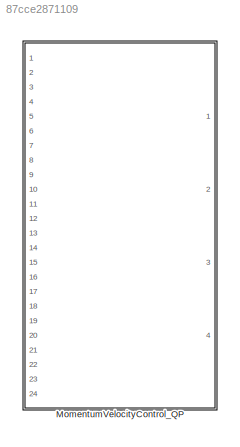
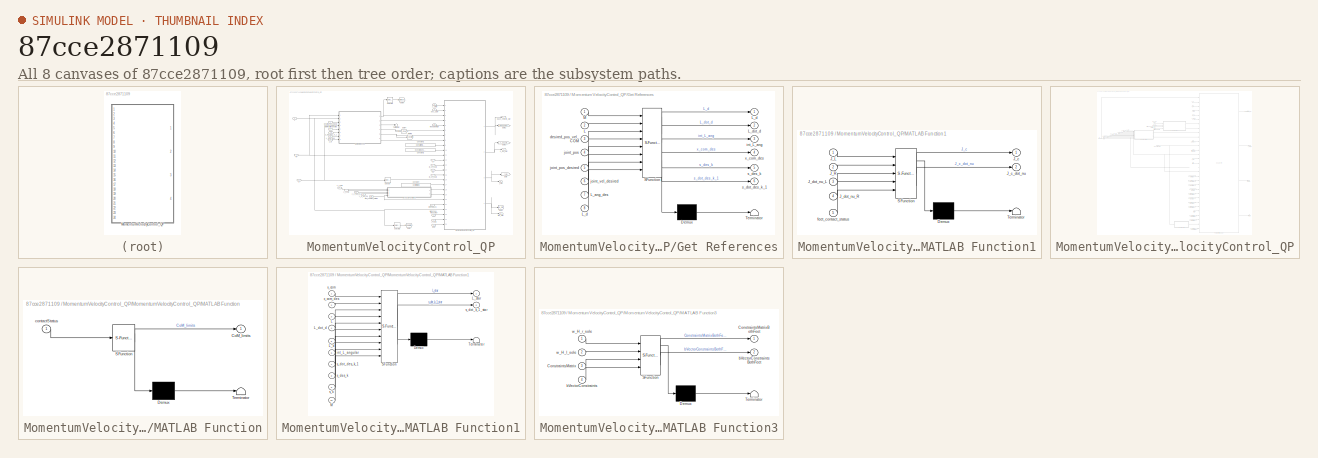
[diagram: thumbnail index - all 8 canvases of the model, root first then tree order]
MODEL slx_87cce2871109
KIND library
CONFIG AbsTol = auto
CONFIG EnableMultiTasking = off
CONFIG FixedStep = auto
CONFIG MaxStep = auto
CONFIG MinStep = auto
CONFIG RelTol = 1e-3
CONFIG SampleTimeConstraint = Unconstrained
CONFIG Solver = VariableStepAuto
CONFIG SolverName = VariableStepAuto
CONFIG StartTime = 0.0
CONFIG StopTime = 10.0
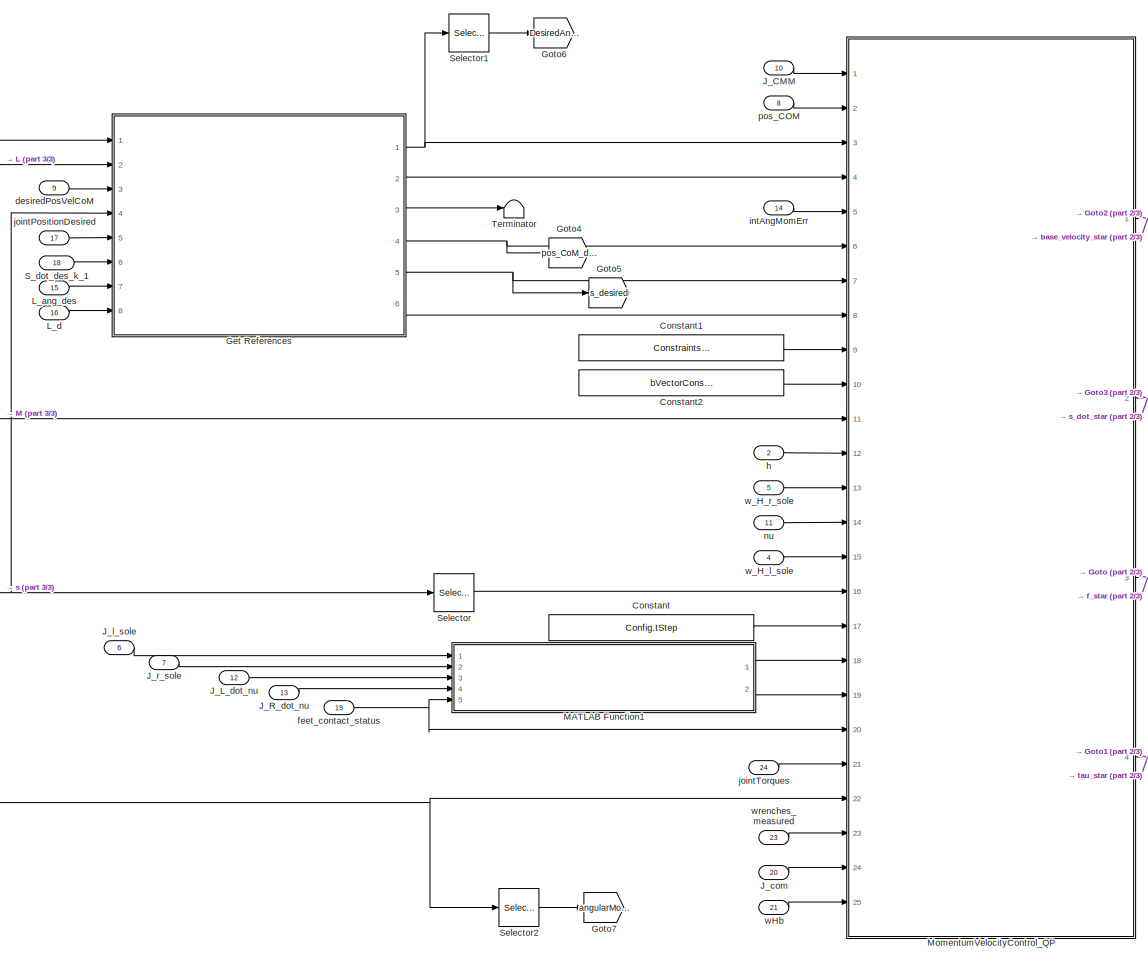
[diagram: MomentumVelocityControl_QP - part 1/3, most of the canvas]
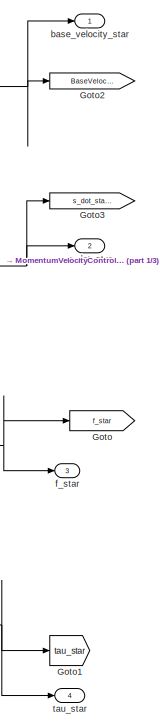
[diagram: MomentumVelocityControl_QP - part 2/3, right side, full height]
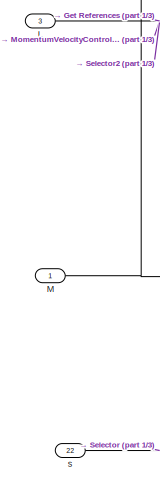
[diagram: MomentumVelocityControl_QP - part 3/3, middle left region]
BLOCK [SubSystem] MomentumVelocityControl_QP
  Ports = [24, 4]
  RequestExecContextInheritance = off
BLOCK [Constant] MomentumVelocityControl_QP/Constant
  Value = Config.tStep
BLOCK [Constant] MomentumVelocityControl_QP/Constant1
  Value = ConstraintsMatrix
BLOCK [Constant] MomentumVelocityControl_QP/Constant2
  Value = bVectorConstraints
BLOCK [SubSystem] MomentumVelocityControl_QP/Get References
  ErrorFcn = Stateflow.Translate.translate
  PermitHierarchicalResolution = ExplicitOnly
  Ports = [8, 6]
  RequestExecContextInheritance = off
  SFBlockType = MATLAB Function
  TreatAsAtomicUnit = on
BLOCK [Demux] MomentumVelocityControl_QP/Get References/ Demux 
  Outputs = 1
  Ports = [1, 1]
BLOCK [S-Function] MomentumVelocityControl_QP/Get References/ SFunction 
  EnableBusSupport = off
  FunctionName = sf_sfun
  PortCounts = [8 7]
  Ports = [8, 7]
  SFcnIsStateOwnerBlock = off
  SFunctionDeploymentMode = off
  Tag = Stateflow S-Function 2
BLOCK [Terminator] MomentumVelocityControl_QP/Get References/ Terminator 
BLOCK [Inport] MomentumVelocityControl_QP/Get References/L
  IconDisplay = Port number
  Port = 2
BLOCK [Inport] MomentumVelocityControl_QP/Get References/L_ang_des
  IconDisplay = Port number
  Port = 7
BLOCK [Outport] MomentumVelocityControl_QP/Get References/L_d
  IconDisplay = Port number
BLOCK [Inport] MomentumVelocityControl_QP/Get References/L_d 
  IconDisplay = Port number
  Port = 8
BLOCK [Outport] MomentumVelocityControl_QP/Get References/L_dot_d
  IconDisplay = Port number
  Port = 2
BLOCK [Inport] MomentumVelocityControl_QP/Get References/M
  IconDisplay = Port number
BLOCK [Inport] MomentumVelocityControl_QP/Get References/desired_pos_vel_COM
  IconDisplay = Port number
  Port = 3
BLOCK [Outport] MomentumVelocityControl_QP/Get References/int_L_ang
  IconDisplay = Port number
  Port = 3
BLOCK [Inport] MomentumVelocityControl_QP/Get References/joint_pos
  IconDisplay = Port number
  Port = 4
BLOCK [Inport] MomentumVelocityControl_QP/Get References/joint_pos_desired
  IconDisplay = Port number
  Port = 5
BLOCK [Inport] MomentumVelocityControl_QP/Get References/joint_vel_desired
  IconDisplay = Port number
  Port = 6
BLOCK [Outport] MomentumVelocityControl_QP/Get References/s_des_k
  IconDisplay = Port number
  Port = 5
BLOCK [Outport] MomentumVelocityControl_QP/Get References/s_dot_des_k_1
  IconDisplay = Port number
  Port = 6
BLOCK [Outport] MomentumVelocityControl_QP/Get References/x_com_des
  IconDisplay = Port number
  Port = 4
BLOCK [Goto] MomentumVelocityControl_QP/Goto
  GotoTag = f_star
  TagVisibility = global
BLOCK [Goto] MomentumVelocityControl_QP/Goto1
  GotoTag = tau_star
  TagVisibility = global
BLOCK [Goto] MomentumVelocityControl_QP/Goto2
  GotoTag = BaseVelocityStar
  TagVisibility = global
BLOCK [Goto] MomentumVelocityControl_QP/Goto3
  GotoTag = s_dot_star_k_1
  TagVisibility = global
BLOCK [Goto] MomentumVelocityControl_QP/Goto4
  GotoTag = pos_CoM_des
  TagVisibility = global
BLOCK [Goto] MomentumVelocityControl_QP/Goto5
  GotoTag = s_desired
  TagVisibility = global
BLOCK [Goto] MomentumVelocityControl_QP/Goto6
  GotoTag = DesiredAngularMomentum
  TagVisibility = global
BLOCK [Goto] MomentumVelocityControl_QP/Goto7
  GotoTag = angularMomentum
  TagVisibility = global
BLOCK [Inport] MomentumVelocityControl_QP/J_CMM
  IconDisplay = Port number
  Port = 10
BLOCK [Inport] MomentumVelocityControl_QP/J_L_dot_nu
  IconDisplay = Port number
  Port = 12
BLOCK [Inport] MomentumVelocityControl_QP/J_R_dot_nu
  IconDisplay = Port number
  Port = 13
BLOCK [Inport] MomentumVelocityControl_QP/J_com
  IconDisplay = Port number
  Port = 20
BLOCK [Inport] MomentumVelocityControl_QP/J_l_sole
  IconDisplay = Port number
  Port = 6
BLOCK [Inport] MomentumVelocityControl_QP/J_r_sole
  IconDisplay = Port number
  Port = 7
BLOCK [Inport] MomentumVelocityControl_QP/L
  IconDisplay = Port number
  Port = 3
BLOCK [Inport] MomentumVelocityControl_QP/L_ang_des
  IconDisplay = Port number
  Port = 15
BLOCK [Inport] MomentumVelocityControl_QP/L_d
  IconDisplay = Port number
  Port = 16
BLOCK [Inport] MomentumVelocityControl_QP/M
  IconDisplay = Port number
BLOCK [SubSystem] MomentumVelocityControl_QP/MATLAB Function1
  ErrorFcn = Stateflow.Translate.translate
  PermitHierarchicalResolution = ExplicitOnly
  Ports = [5, 2]
  RequestExecContextInheritance = off
  SFBlockType = MATLAB Function
  TreatAsAtomicUnit = on
BLOCK [Demux] MomentumVelocityControl_QP/MATLAB Function1/ Demux 
  Outputs = 1
  Ports = [1, 1]
BLOCK [S-Function] MomentumVelocityControl_QP/MATLAB Function1/ SFunction 
  EnableBusSupport = off
  FunctionName = sf_sfun
  PortCounts = [5 3]
  Ports = [5, 3]
  SFcnIsStateOwnerBlock = off
  SFunctionDeploymentMode = off
  Tag = Stateflow S-Function 10
BLOCK [Terminator] MomentumVelocityControl_QP/MATLAB Function1/ Terminator 
BLOCK [Inport] MomentumVelocityControl_QP/MATLAB Function1/J_L
  IconDisplay = Port number
BLOCK [Inport] MomentumVelocityControl_QP/MATLAB Function1/J_R
  IconDisplay = Port number
  Port = 2
BLOCK [Outport] MomentumVelocityControl_QP/MATLAB Function1/J_c
  IconDisplay = Port number
BLOCK [Outport] MomentumVelocityControl_QP/MATLAB Function1/J_c_dot_nu
  IconDisplay = Port number
  Port = 2
BLOCK [Inport] MomentumVelocityControl_QP/MATLAB Function1/J_dot_nu_L
  IconDisplay = Port number
  Port = 3
BLOCK [Inport] MomentumVelocityControl_QP/MATLAB Function1/J_dot_nu_R
  IconDisplay = Port number
  Port = 4
BLOCK [Inport] MomentumVelocityControl_QP/MATLAB Function1/feet_contact_status
  IconDisplay = Port number
  Port = 5
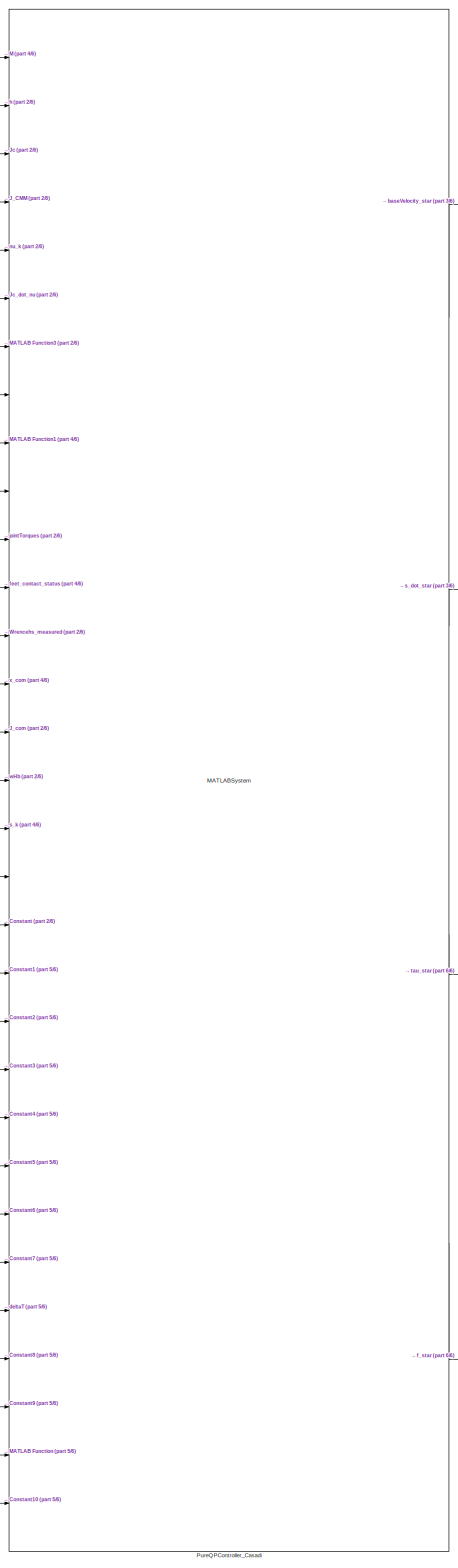
[diagram: MomentumVelocityControl_QP/MomentumVelocityControl_QP - part 1/6, right side, full height]
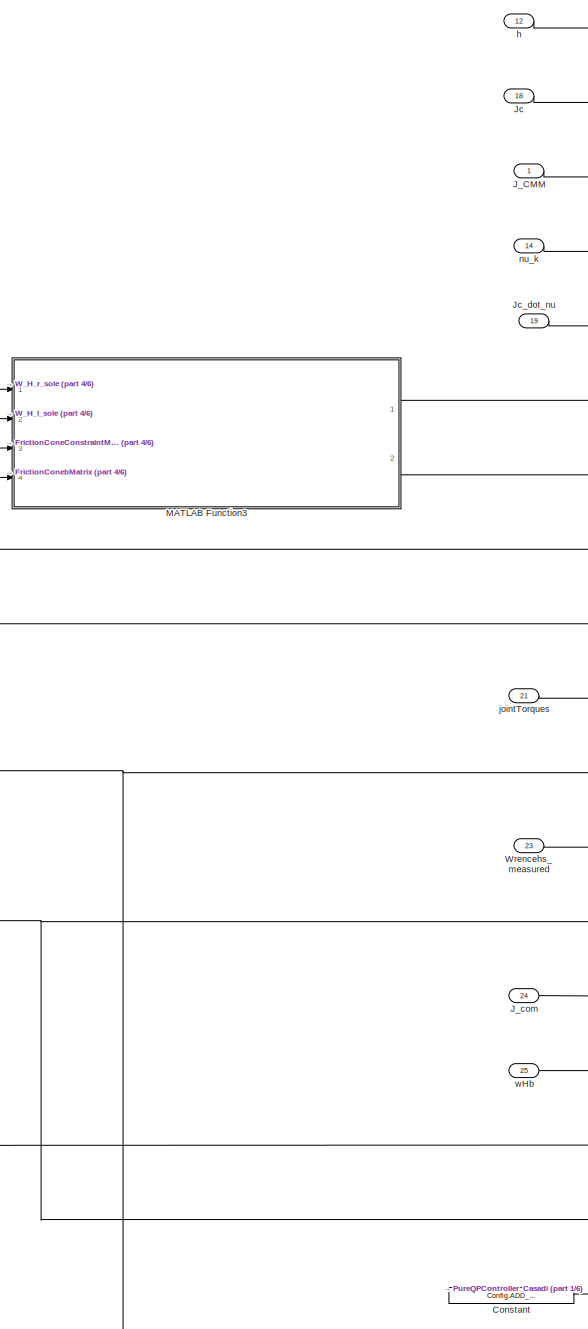
[diagram: MomentumVelocityControl_QP/MomentumVelocityControl_QP - part 2/6, central region]
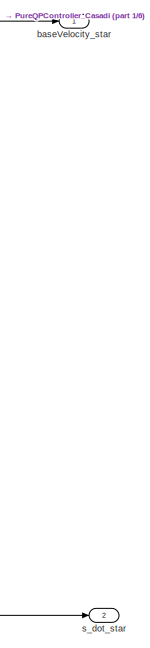
[diagram: MomentumVelocityControl_QP/MomentumVelocityControl_QP - part 3/6, top right region]
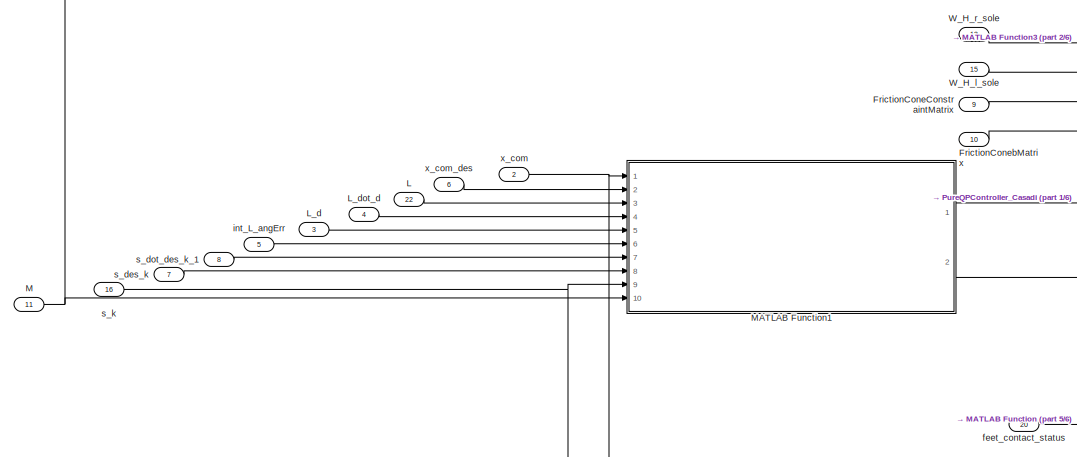
[diagram: MomentumVelocityControl_QP/MomentumVelocityControl_QP - part 4/6, top left region]
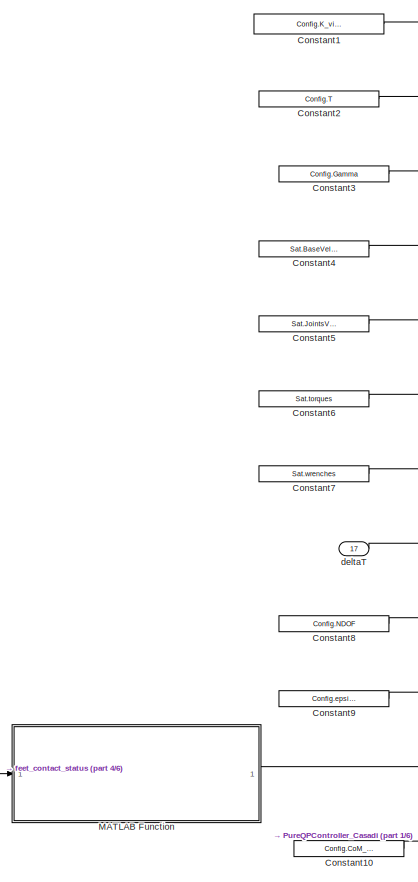
[diagram: MomentumVelocityControl_QP/MomentumVelocityControl_QP - part 5/6, bottom center region]
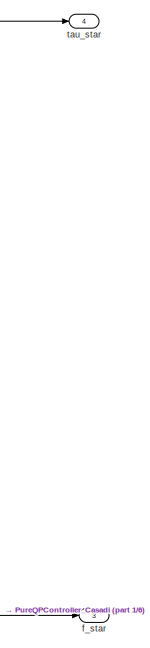
[diagram: MomentumVelocityControl_QP/MomentumVelocityControl_QP - part 6/6, bottom right region]
BLOCK [SubSystem] MomentumVelocityControl_QP/MomentumVelocityControl_QP
  Ports = [25, 4]
  RequestExecContextInheritance = off
BLOCK [Constant] MomentumVelocityControl_QP/MomentumVelocityControl_QP/Constant
  Value = Config.ADD_FRICTION
BLOCK [Constant] MomentumVelocityControl_QP/MomentumVelocityControl_QP/Constant1
  Value = Config.K_viscous_friction
BLOCK [Constant] MomentumVelocityControl_QP/MomentumVelocityControl_QP/Constant10
  Value = Config.CoM_vel_limits
  VectorParams1D = off
BLOCK [Constant] MomentumVelocityControl_QP/MomentumVelocityControl_QP/Constant2
  Value = Config.T
BLOCK [Constant] MomentumVelocityControl_QP/MomentumVelocityControl_QP/Constant3
  Value = Config.Gamma
BLOCK [Constant] MomentumVelocityControl_QP/MomentumVelocityControl_QP/Constant4
  Value = Sat.BaseVelocity
  VectorParams1D = off
BLOCK [Constant] MomentumVelocityControl_QP/MomentumVelocityControl_QP/Constant5
  Value = Sat.JointsVelocity
  VectorParams1D = off
BLOCK [Constant] MomentumVelocityControl_QP/MomentumVelocityControl_QP/Constant6
  Value = Sat.torques
  VectorParams1D = off
BLOCK [Constant] MomentumVelocityControl_QP/MomentumVelocityControl_QP/Constant7
  Value = Sat.wrenches
  VectorParams1D = off
BLOCK [Constant] MomentumVelocityControl_QP/MomentumVelocityControl_QP/Constant8
  Value = Config.NDOF
  VectorParams1D = off
BLOCK [Constant] MomentumVelocityControl_QP/MomentumVelocityControl_QP/Constant9
  Value = Config.epsilon_CoM
  VectorParams1D = off
BLOCK [Inport] MomentumVelocityControl_QP/MomentumVelocityControl_QP/FrictionConeConstraintMatrix
  IconDisplay = Port number
  Port = 9
BLOCK [Inport] MomentumVelocityControl_QP/MomentumVelocityControl_QP/FrictionConebMatrix
  IconDisplay = Port number
  Port = 10
BLOCK [Inport] MomentumVelocityControl_QP/MomentumVelocityControl_QP/J_CMM
  IconDisplay = Port number
BLOCK [Inport] MomentumVelocityControl_QP/MomentumVelocityControl_QP/J_com
  IconDisplay = Port number
  Port = 24
BLOCK [Inport] MomentumVelocityControl_QP/MomentumVelocityControl_QP/Jc
  IconDisplay = Port number
  Port = 18
BLOCK [Inport] MomentumVelocityControl_QP/MomentumVelocityControl_QP/Jc_dot_nu
  IconDisplay = Port number
  Port = 19
BLOCK [Inport] MomentumVelocityControl_QP/MomentumVelocityControl_QP/L
  IconDisplay = Port number
  Port = 22
BLOCK [Inport] MomentumVelocityControl_QP/MomentumVelocityControl_QP/L_d
  IconDisplay = Port number
  Port = 3
BLOCK [Inport] MomentumVelocityControl_QP/MomentumVelocityControl_QP/L_dot_d
  IconDisplay = Port number
  Port = 4
BLOCK [Inport] MomentumVelocityControl_QP/MomentumVelocityControl_QP/M
  IconDisplay = Port number
  Port = 11
BLOCK [SubSystem] MomentumVelocityControl_QP/MomentumVelocityControl_QP/MATLAB Function
  ErrorFcn = Stateflow.Translate.translate
  PermitHierarchicalResolution = ExplicitOnly
  Ports = [1, 1]
  RequestExecContextInheritance = off
  SFBlockType = MATLAB Function
  TreatAsAtomicUnit = on
BLOCK [Demux] MomentumVelocityControl_QP/MomentumVelocityControl_QP/MATLAB Function/ Demux 
  Outputs = 1
  Ports = [1, 1]
BLOCK [S-Function] MomentumVelocityControl_QP/MomentumVelocityControl_QP/MATLAB Function/ SFunction 
  EnableBusSupport = off
  FunctionName = sf_sfun
  Parameters = Config
  PortCounts = [1 2]
  Ports = [1, 2]
  SFcnIsStateOwnerBlock = off
  SFunctionDeploymentMode = off
  Tag = Stateflow S-Function 1
BLOCK [Terminator] MomentumVelocityControl_QP/MomentumVelocityControl_QP/MATLAB Function/ Terminator 
BLOCK [Outport] MomentumVelocityControl_QP/MomentumVelocityControl_QP/MATLAB Function/CoM_limits
  IconDisplay = Port number
BLOCK [Inport] MomentumVelocityControl_QP/MomentumVelocityControl_QP/MATLAB Function/contactStatus
  IconDisplay = Port number
BLOCK [SubSystem] MomentumVelocityControl_QP/MomentumVelocityControl_QP/MATLAB Function1
  ErrorFcn = Stateflow.Translate.translate
  PermitHierarchicalResolution = ExplicitOnly
  Ports = [10, 2]
  RequestExecContextInheritance = off
  SFBlockType = MATLAB Function
  TreatAsAtomicUnit = on
BLOCK [Demux] MomentumVelocityControl_QP/MomentumVelocityControl_QP/MATLAB Function1/ Demux 
  Outputs = 1
  Ports = [1, 1]
BLOCK [S-Function] MomentumVelocityControl_QP/MomentumVelocityControl_QP/MATLAB Function1/ SFunction 
  EnableBusSupport = off
  FunctionName = sf_sfun
  Parameters = Gains
  PortCounts = [10 3]
  Ports = [10, 3]
  SFcnIsStateOwnerBlock = off
  SFunctionDeploymentMode = off
  Tag = Stateflow S-Function 19
BLOCK [Terminator] MomentumVelocityControl_QP/MomentumVelocityControl_QP/MATLAB Function1/ Terminator 
BLOCK [Inport] MomentumVelocityControl_QP/MomentumVelocityControl_QP/MATLAB Function1/L
  IconDisplay = Port number
  Port = 3
BLOCK [Inport] MomentumVelocityControl_QP/MomentumVelocityControl_QP/MATLAB Function1/L_d
  IconDisplay = Port number
  Port = 5
BLOCK [Inport] MomentumVelocityControl_QP/MomentumVelocityControl_QP/MATLAB Function1/L_dot_d
  IconDisplay = Port number
  Port = 4
BLOCK [Outport] MomentumVelocityControl_QP/MomentumVelocityControl_QP/MATLAB Function1/L_star
  IconDisplay = Port number
BLOCK [Inport] MomentumVelocityControl_QP/MomentumVelocityControl_QP/MATLAB Function1/M
  IconDisplay = Port number
  Port = 10
BLOCK [Inport] MomentumVelocityControl_QP/MomentumVelocityControl_QP/MATLAB Function1/int_L_angular
  IconDisplay = Port number
  Port = 6
BLOCK [Inport] MomentumVelocityControl_QP/MomentumVelocityControl_QP/MATLAB Function1/s_des_k
  IconDisplay = Port number
  Port = 8
BLOCK [Inport] MomentumVelocityControl_QP/MomentumVelocityControl_QP/MATLAB Function1/s_dot_des_k_1
  IconDisplay = Port number
  Port = 7
BLOCK [Outport] MomentumVelocityControl_QP/MomentumVelocityControl_QP/MATLAB Function1/s_dot_k_1_star
  IconDisplay = Port number
  Port = 2
BLOCK [Inport] MomentumVelocityControl_QP/MomentumVelocityControl_QP/MATLAB Function1/s_k
  IconDisplay = Port number
  Port = 9
BLOCK [Inport] MomentumVelocityControl_QP/MomentumVelocityControl_QP/MATLAB Function1/x_com
  IconDisplay = Port number
BLOCK [Inport] MomentumVelocityControl_QP/MomentumVelocityControl_QP/MATLAB Function1/x_com_des
  IconDisplay = Port number
  Port = 2
BLOCK [SubSystem] MomentumVelocityControl_QP/MomentumVelocityControl_QP/MATLAB Function3
  ErrorFcn = Stateflow.Translate.translate
  PermitHierarchicalResolution = ExplicitOnly
  Ports = [4, 2]
  RequestExecContextInheritance = off
  SFBlockType = MATLAB Function
  TreatAsAtomicUnit = on
BLOCK [Demux] MomentumVelocityControl_QP/MomentumVelocityControl_QP/MATLAB Function3/ Demux 
  Outputs = 1
  Ports = [1, 1]
BLOCK [S-Function] MomentumVelocityControl_QP/MomentumVelocityControl_QP/MATLAB Function3/ SFunction 
  EnableBusSupport = off
  FunctionName = sf_sfun
  PortCounts = [4 3]
  Ports = [4, 3]
  SFcnIsStateOwnerBlock = off
  SFunctionDeploymentMode = off
  Tag = Stateflow S-Function 20
BLOCK [Terminator] MomentumVelocityControl_QP/MomentumVelocityControl_QP/MATLAB Function3/ Terminator 
BLOCK [Inport] MomentumVelocityControl_QP/MomentumVelocityControl_QP/MATLAB Function3/ConstraintsMatrix
  IconDisplay = Port number
  Port = 3
BLOCK [Outport] MomentumVelocityControl_QP/MomentumVelocityControl_QP/MATLAB Function3/ConstraintsMatrixBothFeet
  IconDisplay = Port number
BLOCK [Inport] MomentumVelocityControl_QP/MomentumVelocityControl_QP/MATLAB Function3/bVectorConstraints
  IconDisplay = Port number
  Port = 4
BLOCK [Outport] MomentumVelocityControl_QP/MomentumVelocityControl_QP/MATLAB Function3/bVectorConstraintsBothFeet
  IconDisplay = Port number
  Port = 2
BLOCK [Inport] MomentumVelocityControl_QP/MomentumVelocityControl_QP/MATLAB Function3/w_H_l_sole
  IconDisplay = Port number
  Port = 2
BLOCK [Inport] MomentumVelocityControl_QP/MomentumVelocityControl_QP/MATLAB Function3/w_H_r_sole
  IconDisplay = Port number
BLOCK [MATLABSystem] MomentumVelocityControl_QP/MomentumVelocityControl_QP/PureQPController_Casadi
  MaskDisplay = disp('casadi_block');\nport_label('input',1,'M');\nport_label('input',2,'h');\nport_label('input',3,'Jc');\nport_label('input',4,'Jcmm');\nport_label('input',5,'nu_k');\nport_label('input',6,'Jc_dot_nu');\nport_label('input',7,'C_friction');\nport_label('input',8,'b_friction');\nport_label('input',9,'H_star');\nport_label('input',10,'s_dot_star');\nport_label('input',11,'tau_meas');\nport_label('input',12,'co...<+838ch>
  MaskType = casadi_block
  Ports = [31, 4]
  SimulateUsing = Interpreted execution
  System = casadi_block
BLOCK [Inport] MomentumVelocityControl_QP/MomentumVelocityControl_QP/W_H_l_sole
  IconDisplay = Port number
  Port = 15
BLOCK [Inport] MomentumVelocityControl_QP/MomentumVelocityControl_QP/W_H_r_sole
  IconDisplay = Port number
  Port = 13
BLOCK [Inport] MomentumVelocityControl_QP/MomentumVelocityControl_QP/Wrencehs_measured
  IconDisplay = Port number
  Port = 23
BLOCK [Outport] MomentumVelocityControl_QP/MomentumVelocityControl_QP/baseVelocity_star
  IconDisplay = Port number
BLOCK [Inport] MomentumVelocityControl_QP/MomentumVelocityControl_QP/deltaT 
  IconDisplay = Port number
  Port = 17
BLOCK [Outport] MomentumVelocityControl_QP/MomentumVelocityControl_QP/f_star
  IconDisplay = Port number
  Port = 3
BLOCK [Inport] MomentumVelocityControl_QP/MomentumVelocityControl_QP/feet_contact_status
  IconDisplay = Port number
  Port = 20
BLOCK [Inport] MomentumVelocityControl_QP/MomentumVelocityControl_QP/h
  IconDisplay = Port number
  Port = 12
BLOCK [Inport] MomentumVelocityControl_QP/MomentumVelocityControl_QP/int_L_angErr
  IconDisplay = Port number
  Port = 5
BLOCK [Inport] MomentumVelocityControl_QP/MomentumVelocityControl_QP/jointTorques
  IconDisplay = Port number
  Port = 21
BLOCK [Inport] MomentumVelocityControl_QP/MomentumVelocityControl_QP/nu_k
  IconDisplay = Port number
  Port = 14
BLOCK [Inport] MomentumVelocityControl_QP/MomentumVelocityControl_QP/s_des_k
  IconDisplay = Port number
  Port = 7
BLOCK [Inport] MomentumVelocityControl_QP/MomentumVelocityControl_QP/s_dot_des_k_1
  IconDisplay = Port number
  Port = 8
BLOCK [Outport] MomentumVelocityControl_QP/MomentumVelocityControl_QP/s_dot_star
  IconDisplay = Port number
  Port = 2
BLOCK [Inport] MomentumVelocityControl_QP/MomentumVelocityControl_QP/s_k
  IconDisplay = Port number
  Port = 16
BLOCK [Outport] MomentumVelocityControl_QP/MomentumVelocityControl_QP/tau_star
  IconDisplay = Port number
  Port = 4
BLOCK [Inport] MomentumVelocityControl_QP/MomentumVelocityControl_QP/wHb
  IconDisplay = Port number
  Port = 25
BLOCK [Inport] MomentumVelocityControl_QP/MomentumVelocityControl_QP/x_com
  IconDisplay = Port number
  Port = 2
BLOCK [Inport] MomentumVelocityControl_QP/MomentumVelocityControl_QP/x_com_des
  IconDisplay = Port number
  Port = 6
BLOCK [Inport] MomentumVelocityControl_QP/S_dot_des_k_1
  IconDisplay = Port number
  Port = 18
BLOCK [Selector] MomentumVelocityControl_QP/Selector
  IndexOptions = Index vector (dialog)
  Indices = [1:ROBOT_DOF]
  InputPortWidth = ROBOT_DOF
  OutputSizes = 1
  Ports = [1, 1]
BLOCK [Selector] MomentumVelocityControl_QP/Selector1
  IndexOptions = Index vector (dialog)
  Indices = [4:6]
  InputPortWidth = 6
  OutputSizes = 1
  Ports = [1, 1]
BLOCK [Selector] MomentumVelocityControl_QP/Selector2
  IndexOptions = Index vector (dialog)
  Indices = [4:6]
  InputPortWidth = 6
  OutputSizes = 1
  Ports = [1, 1]
BLOCK [Terminator] MomentumVelocityControl_QP/Terminator
BLOCK [Outport] MomentumVelocityControl_QP/base_velocity_star
  IconDisplay = Port number
BLOCK [Inport] MomentumVelocityControl_QP/desiredPosVelCoM
  IconDisplay = Port number
  Port = 9
BLOCK [Outport] MomentumVelocityControl_QP/f_star
  IconDisplay = Port number
  Port = 3
BLOCK [Inport] MomentumVelocityControl_QP/feet_contact_status
  IconDisplay = Port number
  Port = 19
BLOCK [Inport] MomentumVelocityControl_QP/h
  IconDisplay = Port number
  Port = 2
BLOCK [Inport] MomentumVelocityControl_QP/intAngMomErr
  IconDisplay = Port number
  Port = 14
BLOCK [Inport] MomentumVelocityControl_QP/jointPositionDesired
  IconDisplay = Port number
  Port = 17
BLOCK [Inport] MomentumVelocityControl_QP/jointTorques
  IconDisplay = Port number
  Port = 24
BLOCK [Inport] MomentumVelocityControl_QP/nu
  IconDisplay = Port number
  Port = 11
BLOCK [Inport] MomentumVelocityControl_QP/pos_COM
  IconDisplay = Port number
  Port = 8
BLOCK [Inport] MomentumVelocityControl_QP/s
  IconDisplay = Port number
  Port = 22
BLOCK [Outport] MomentumVelocityControl_QP/s_dot_star
  IconDisplay = Port number
  Port = 2
BLOCK [Outport] MomentumVelocityControl_QP/tau_star
  IconDisplay = Port number
  Port = 4
BLOCK [Inport] MomentumVelocityControl_QP/wHb
  IconDisplay = Port number
  Port = 21
BLOCK [Inport] MomentumVelocityControl_QP/w_H_l_sole
  IconDisplay = Port number
  Port = 4
BLOCK [Inport] MomentumVelocityControl_QP/w_H_r_sole
  IconDisplay = Port number
  Port = 5
BLOCK [Inport] MomentumVelocityControl_QP/wrenches_measured
  IconDisplay = Port number
  Port = 23
LINE MomentumVelocityControl_QP/Constant1:1 -> MomentumVelocityControl_QP/MomentumVelocityControl_QP:9
LINE MomentumVelocityControl_QP/Constant2:1 -> MomentumVelocityControl_QP/MomentumVelocityControl_QP:10
LINE MomentumVelocityControl_QP/Constant:1 -> MomentumVelocityControl_QP/MomentumVelocityControl_QP:17
NET MomentumVelocityControl_QP/Get References:1 -> MomentumVelocityControl_QP/MomentumVelocityControl_QP:3, MomentumVelocityControl_QP/Selector1:1
LINE MomentumVelocityControl_QP/Get References:2 -> MomentumVelocityControl_QP/MomentumVelocityControl_QP:4
LINE MomentumVelocityControl_QP/Get References:3 -> MomentumVelocityControl_QP/Terminator:1
NET MomentumVelocityControl_QP/Get References:4 -> MomentumVelocityControl_QP/Goto4:1, MomentumVelocityControl_QP/MomentumVelocityControl_QP:6
NET MomentumVelocityControl_QP/Get References:5 -> MomentumVelocityControl_QP/Goto5:1, MomentumVelocityControl_QP/MomentumVelocityControl_QP:7
LINE MomentumVelocityControl_QP/Get References:6 -> MomentumVelocityControl_QP/MomentumVelocityControl_QP:8
LINE MomentumVelocityControl_QP/J_CMM:1 -> MomentumVelocityControl_QP/MomentumVelocityControl_QP:1
LINE MomentumVelocityControl_QP/J_L_dot_nu:1 -> MomentumVelocityControl_QP/MATLAB Function1:3
LINE MomentumVelocityControl_QP/J_R_dot_nu:1 -> MomentumVelocityControl_QP/MATLAB Function1:4
LINE MomentumVelocityControl_QP/J_com:1 -> MomentumVelocityControl_QP/MomentumVelocityControl_QP:24
LINE MomentumVelocityControl_QP/J_l_sole:1 -> MomentumVelocityControl_QP/MATLAB Function1:1
LINE MomentumVelocityControl_QP/J_r_sole:1 -> MomentumVelocityControl_QP/MATLAB Function1:2
NET MomentumVelocityControl_QP/L:1 -> MomentumVelocityControl_QP/Get References:2, MomentumVelocityControl_QP/MomentumVelocityControl_QP:22, MomentumVelocityControl_QP/Selector2:1
LINE MomentumVelocityControl_QP/L_ang_des:1 -> MomentumVelocityControl_QP/Get References:7
LINE MomentumVelocityControl_QP/L_d:1 -> MomentumVelocityControl_QP/Get References:8
NET MomentumVelocityControl_QP/M:1 -> MomentumVelocityControl_QP/Get References:1, MomentumVelocityControl_QP/MomentumVelocityControl_QP:11
LINE MomentumVelocityControl_QP/MATLAB Function1:1 -> MomentumVelocityControl_QP/MomentumVelocityControl_QP:18
LINE MomentumVelocityControl_QP/MATLAB Function1:2 -> MomentumVelocityControl_QP/MomentumVelocityControl_QP:19
LINE MomentumVelocityControl_QP/MomentumVelocityControl_QP/Constant10:1 -> MomentumVelocityControl_QP/MomentumVelocityControl_QP/PureQPController_Casadi:31
LINE MomentumVelocityControl_QP/MomentumVelocityControl_QP/Constant1:1 -> MomentumVelocityControl_QP/MomentumVelocityControl_QP/PureQPController_Casadi:20
LINE MomentumVelocityControl_QP/MomentumVelocityControl_QP/Constant2:1 -> MomentumVelocityControl_QP/MomentumVelocityControl_QP/PureQPController_Casadi:21
LINE MomentumVelocityControl_QP/MomentumVelocityControl_QP/Constant3:1 -> MomentumVelocityControl_QP/MomentumVelocityControl_QP/PureQPController_Casadi:22
LINE MomentumVelocityControl_QP/MomentumVelocityControl_QP/Constant4:1 -> MomentumVelocityControl_QP/MomentumVelocityControl_QP/PureQPController_Casadi:23
LINE MomentumVelocityControl_QP/MomentumVelocityControl_QP/Constant5:1 -> MomentumVelocityControl_QP/MomentumVelocityControl_QP/PureQPController_Casadi:24
LINE MomentumVelocityControl_QP/MomentumVelocityControl_QP/Constant6:1 -> MomentumVelocityControl_QP/MomentumVelocityControl_QP/PureQPController_Casadi:25
LINE MomentumVelocityControl_QP/MomentumVelocityControl_QP/Constant7:1 -> MomentumVelocityControl_QP/MomentumVelocityControl_QP/PureQPController_Casadi:26
LINE MomentumVelocityControl_QP/MomentumVelocityControl_QP/Constant8:1 -> MomentumVelocityControl_QP/MomentumVelocityControl_QP/PureQPController_Casadi:28
LINE MomentumVelocityControl_QP/MomentumVelocityControl_QP/Constant9:1 -> MomentumVelocityControl_QP/MomentumVelocityControl_QP/PureQPController_Casadi:29
LINE MomentumVelocityControl_QP/MomentumVelocityControl_QP/Constant:1 -> MomentumVelocityControl_QP/MomentumVelocityControl_QP/PureQPController_Casadi:19
LINE MomentumVelocityControl_QP/MomentumVelocityControl_QP/FrictionConeConstraintMatrix:1 -> MomentumVelocityControl_QP/MomentumVelocityControl_QP/MATLAB Function3:3
LINE MomentumVelocityControl_QP/MomentumVelocityControl_QP/FrictionConebMatrix:1 -> MomentumVelocityControl_QP/MomentumVelocityControl_QP/MATLAB Function3:4
LINE MomentumVelocityControl_QP/MomentumVelocityControl_QP/J_CMM:1 -> MomentumVelocityControl_QP/MomentumVelocityControl_QP/PureQPController_Casadi:4
LINE MomentumVelocityControl_QP/MomentumVelocityControl_QP/J_com:1 -> MomentumVelocityControl_QP/MomentumVelocityControl_QP/PureQPController_Casadi:15
LINE MomentumVelocityControl_QP/MomentumVelocityControl_QP/Jc:1 -> MomentumVelocityControl_QP/MomentumVelocityControl_QP/PureQPController_Casadi:3
LINE MomentumVelocityControl_QP/MomentumVelocityControl_QP/Jc_dot_nu:1 -> MomentumVelocityControl_QP/MomentumVelocityControl_QP/PureQPController_Casadi:6
LINE MomentumVelocityControl_QP/MomentumVelocityControl_QP/L:1 -> MomentumVelocityControl_QP/MomentumVelocityControl_QP/MATLAB Function1:3
LINE MomentumVelocityControl_QP/MomentumVelocityControl_QP/L_d:1 -> MomentumVelocityControl_QP/MomentumVelocityControl_QP/MATLAB Function1:5
LINE MomentumVelocityControl_QP/MomentumVelocityControl_QP/L_dot_d:1 -> MomentumVelocityControl_QP/MomentumVelocityControl_QP/MATLAB Function1:4
NET MomentumVelocityControl_QP/MomentumVelocityControl_QP/M:1 -> MomentumVelocityControl_QP/MomentumVelocityControl_QP/MATLAB Function1:10, MomentumVelocityControl_QP/MomentumVelocityControl_QP/PureQPController_Casadi:1
LINE MomentumVelocityControl_QP/MomentumVelocityControl_QP/MATLAB Function1:1 -> MomentumVelocityControl_QP/MomentumVelocityControl_QP/PureQPController_Casadi:9
LINE MomentumVelocityControl_QP/MomentumVelocityControl_QP/MATLAB Function1:2 -> MomentumVelocityControl_QP/MomentumVelocityControl_QP/PureQPController_Casadi:10
LINE MomentumVelocityControl_QP/MomentumVelocityControl_QP/MATLAB Function3:1 -> MomentumVelocityControl_QP/MomentumVelocityControl_QP/PureQPController_Casadi:7
LINE MomentumVelocityControl_QP/MomentumVelocityControl_QP/MATLAB Function3:2 -> MomentumVelocityControl_QP/MomentumVelocityControl_QP/PureQPController_Casadi:8
LINE MomentumVelocityControl_QP/MomentumVelocityControl_QP/MATLAB Function:1 -> MomentumVelocityControl_QP/MomentumVelocityControl_QP/PureQPController_Casadi:30
LINE MomentumVelocityControl_QP/MomentumVelocityControl_QP/PureQPController_Casadi:1 -> MomentumVelocityControl_QP/MomentumVelocityControl_QP/baseVelocity_star:1
LINE MomentumVelocityControl_QP/MomentumVelocityControl_QP/PureQPController_Casadi:2 -> MomentumVelocityControl_QP/MomentumVelocityControl_QP/s_dot_star:1
LINE MomentumVelocityControl_QP/MomentumVelocityControl_QP/PureQPController_Casadi:3 -> MomentumVelocityControl_QP/MomentumVelocityControl_QP/tau_star:1
LINE MomentumVelocityControl_QP/MomentumVelocityControl_QP/PureQPController_Casadi:4 -> MomentumVelocityControl_QP/MomentumVelocityControl_QP/f_star:1
LINE MomentumVelocityControl_QP/MomentumVelocityControl_QP/W_H_l_sole:1 -> MomentumVelocityControl_QP/MomentumVelocityControl_QP/MATLAB Function3:2
LINE MomentumVelocityControl_QP/MomentumVelocityControl_QP/W_H_r_sole:1 -> MomentumVelocityControl_QP/MomentumVelocityControl_QP/MATLAB Function3:1
LINE MomentumVelocityControl_QP/MomentumVelocityControl_QP/Wrencehs_measured:1 -> MomentumVelocityControl_QP/MomentumVelocityControl_QP/PureQPController_Casadi:13
LINE MomentumVelocityControl_QP/MomentumVelocityControl_QP/deltaT :1 -> MomentumVelocityControl_QP/MomentumVelocityControl_QP/PureQPController_Casadi:27
NET MomentumVelocityControl_QP/MomentumVelocityControl_QP/feet_contact_status:1 -> MomentumVelocityControl_QP/MomentumVelocityControl_QP/MATLAB Function:1, MomentumVelocityControl_QP/MomentumVelocityControl_QP/PureQPController_Casadi:12
LINE MomentumVelocityControl_QP/MomentumVelocityControl_QP/h:1 -> MomentumVelocityControl_QP/MomentumVelocityControl_QP/PureQPController_Casadi:2
LINE MomentumVelocityControl_QP/MomentumVelocityControl_QP/int_L_angErr:1 -> MomentumVelocityControl_QP/MomentumVelocityControl_QP/MATLAB Function1:6
LINE MomentumVelocityControl_QP/MomentumVelocityControl_QP/jointTorques:1 -> MomentumVelocityControl_QP/MomentumVelocityControl_QP/PureQPController_Casadi:11
LINE MomentumVelocityControl_QP/MomentumVelocityControl_QP/nu_k:1 -> MomentumVelocityControl_QP/MomentumVelocityControl_QP/PureQPController_Casadi:5
LINE MomentumVelocityControl_QP/MomentumVelocityControl_QP/s_des_k:1 -> MomentumVelocityControl_QP/MomentumVelocityControl_QP/MATLAB Function1:8
LINE MomentumVelocityControl_QP/MomentumVelocityControl_QP/s_dot_des_k_1:1 -> MomentumVelocityControl_QP/MomentumVelocityControl_QP/MATLAB Function1:7
NET MomentumVelocityControl_QP/MomentumVelocityControl_QP/s_k:1 -> MomentumVelocityControl_QP/MomentumVelocityControl_QP/MATLAB Function1:9, MomentumVelocityControl_QP/MomentumVelocityControl_QP/PureQPController_Casadi:17
LINE MomentumVelocityControl_QP/MomentumVelocityControl_QP/wHb:1 -> MomentumVelocityControl_QP/MomentumVelocityControl_QP/PureQPController_Casadi:16
NET MomentumVelocityControl_QP/MomentumVelocityControl_QP/x_com:1 -> MomentumVelocityControl_QP/MomentumVelocityControl_QP/MATLAB Function1:1, MomentumVelocityControl_QP/MomentumVelocityControl_QP/PureQPController_Casadi:14, MomentumVelocityControl_QP/MomentumVelocityControl_QP/PureQPController_Casadi:18
LINE MomentumVelocityControl_QP/MomentumVelocityControl_QP/x_com_des:1 -> MomentumVelocityControl_QP/MomentumVelocityControl_QP/MATLAB Function1:2
NET MomentumVelocityControl_QP/MomentumVelocityControl_QP:1 -> MomentumVelocityControl_QP/Goto2:1, MomentumVelocityControl_QP/base_velocity_star:1
NET MomentumVelocityControl_QP/MomentumVelocityControl_QP:2 -> MomentumVelocityControl_QP/Goto3:1, MomentumVelocityControl_QP/s_dot_star:1
NET MomentumVelocityControl_QP/MomentumVelocityControl_QP:3 -> MomentumVelocityControl_QP/Goto:1, MomentumVelocityControl_QP/f_star:1
NET MomentumVelocityControl_QP/MomentumVelocityControl_QP:4 -> MomentumVelocityControl_QP/Goto1:1, MomentumVelocityControl_QP/tau_star:1
LINE MomentumVelocityControl_QP/S_dot_des_k_1:1 -> MomentumVelocityControl_QP/Get References:6
LINE MomentumVelocityControl_QP/Selector1:1 -> MomentumVelocityControl_QP/Goto6:1
LINE MomentumVelocityControl_QP/Selector2:1 -> MomentumVelocityControl_QP/Goto7:1
LINE MomentumVelocityControl_QP/Selector:1 -> MomentumVelocityControl_QP/MomentumVelocityControl_QP:16
LINE MomentumVelocityControl_QP/desiredPosVelCoM:1 -> MomentumVelocityControl_QP/Get References:3
NET MomentumVelocityControl_QP/feet_contact_status:1 -> MomentumVelocityControl_QP/MATLAB Function1:5, MomentumVelocityControl_QP/MomentumVelocityControl_QP:20
LINE MomentumVelocityControl_QP/h:1 -> MomentumVelocityControl_QP/MomentumVelocityControl_QP:12
LINE MomentumVelocityControl_QP/intAngMomErr:1 -> MomentumVelocityControl_QP/MomentumVelocityControl_QP:5
LINE MomentumVelocityControl_QP/jointPositionDesired:1 -> MomentumVelocityControl_QP/Get References:5
LINE MomentumVelocityControl_QP/jointTorques:1 -> MomentumVelocityControl_QP/MomentumVelocityControl_QP:21
LINE MomentumVelocityControl_QP/nu:1 -> MomentumVelocityControl_QP/MomentumVelocityControl_QP:14
LINE MomentumVelocityControl_QP/pos_COM:1 -> MomentumVelocityControl_QP/MomentumVelocityControl_QP:2
NET MomentumVelocityControl_QP/s:1 -> MomentumVelocityControl_QP/Get References:4, MomentumVelocityControl_QP/Selector:1
LINE MomentumVelocityControl_QP/wHb:1 -> MomentumVelocityControl_QP/MomentumVelocityControl_QP:25
LINE MomentumVelocityControl_QP/w_H_l_sole:1 -> MomentumVelocityControl_QP/MomentumVelocityControl_QP:15
LINE MomentumVelocityControl_QP/w_H_r_sole:1 -> MomentumVelocityControl_QP/MomentumVelocityControl_QP:13
LINE MomentumVelocityControl_QP/wrenches_measured:1 -> MomentumVelocityControl_QP/MomentumVelocityControl_QP:23
note: NET lines group one-source signal fan-out (src -> all destinations, sorted); 1:1 wires keep LINE
CHART MomentumVelocityControl_QP/MomentumVelocityControl_QP/MATLAB Function states=1 transitions=1
  STATE_LABEL 'eML_blk_kernel()'
  STATE_LABEL 'SCRIPT:\nfunction CoM_limits  = SupportPolygonWRTContactStatus(contactStatus,Config)\n   CoM_limits = SupportPolygonWRTContactStatusFCN(contactStatus,Config);\nend\n'
CHART MomentumVelocityControl_QP/Get References states=1 transitions=1
  STATE_LABEL 'eML_blk_kernel()'
  STATE_LABEL 'SCRIPT:\nfunction [L_d, L_dot_d, int_L_ang,x_com_des, s_des_k,s_dot_des_k_1]= ComputeReferencesFCN(M,L,desired_pos_vel_COM, joint_pos, joint_pos_desired,joint_vel_desired, L_ang_des,L_d)\n[L_d, L_dot_d, int_L_ang,x_com_des, s_des_k,s_dot_des_k_1]= ComputeReferencesController(M,L,desired_pos_vel_COM, joint_pos, joint_pos_desired,joint_vel_desired, L_ang_des,L_d);\n\nend'
CHART MomentumVelocityControl_QP/MATLAB Function1 states=1 transitions=1
  STATE_LABEL 'eML_blk_kernel()'
  STATE_LABEL 'SCRIPT:\nfunction [J_c,J_c_dot_nu] = ComputeContactJacobianWithFeetContact(J_L,J_R,J_dot_nu_L, J_dot_nu_R, feet_contact_status)\n\n\n[J_c,J_c_dot_nu] = ComputeContactJacobianWithFeetContactFCN(J_L,J_R,J_dot_nu_L, J_dot_nu_R, feet_contact_status);\n\nend'
CHART MomentumVelocityControl_QP/MomentumVelocityControl_QP/MATLAB Function1 states=1 transitions=1
  STATE_LABEL 'eML_blk_kernel()'
  STATE_LABEL 'SCRIPT:\nfunction [L_star, s_dot_k_1_star] = ComputeReferencesFCN(x_com, x_com_des, L, L_dot_d, L_d, int_L_angular, s_dot_des_k_1, s_des_k, s_k, M,Gains) \n\n[L_star, L_dot_star, s_dot_k_1_star] = ComputeReferences(x_com, x_com_des, L, L_dot_d, L_d, int_L_angular, s_dot_des_k_1, s_des_k, s_k, M(1,1),Gains); \n\nend'
CHART MomentumVelocityControl_QP/MomentumVelocityControl_QP/MATLAB Function3 states=1 transitions=1
  STATE_LABEL 'eML_blk_kernel()'
  STATE_LABEL "SCRIPT:\nfunction [ConstraintsMatrixBothFeet,bVectorConstraintsBothFeet] = ComputeConstraintMatrix(w_H_r_sole,w_H_l_sole,ConstraintsMatrix,bVectorConstraints)\nw_R_r_sole                 = w_H_r_sole(1:3,1:3);\nw_R_l_sole                 = w_H_l_sole(1:3,1:3);\nConstraintMatrixLeftFoot   = ConstraintsMatrix * blkdiag(w_R_l_sole', w_R_l_sole');\nConstraintMatrixRightFoot  = ConstraintsMatrix * blkdiag(w...<+192ch>"
